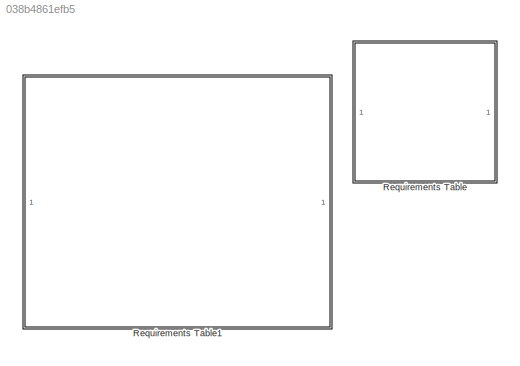
MODEL slx_038b4861efb5
KIND model
CONFIG AbsTol = auto
CONFIG EnableMultiTasking = on
CONFIG FixedStep = 1e-3
CONFIG MaxStep = auto
CONFIG MinStep = auto
CONFIG RelTol = 1e-3
CONFIG SampleTimeConstraint = Unconstrained
CONFIG SolverName = FixedStepAuto
CONFIG StartTime = 0.0
CONFIG StopTime = 10.0
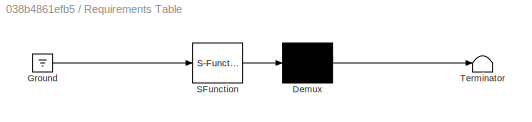
BLOCK [SubSystem] Requirements Table
  ErrorFcn = Stateflow.Translate.translate
  PermitHierarchicalResolution = ExplicitOnly
  SFBlockType = Requirements Table
  TreatAsAtomicUnit = on
BLOCK [Demux] Requirements Table/ Demux 
  Outputs = 1
BLOCK [Ground] Requirements Table/ Ground 
BLOCK [S-Function] Requirements Table/ SFunction 
  EnableBusSupport = off
  FunctionName = sf_sfun
  PortCounts = [1 1]
  SFcnIsStateOwnerBlock = off
  SFunctionDeploymentMode = off
  Tag = Stateflow S-Function 3
BLOCK [Terminator] Requirements Table/ Terminator 
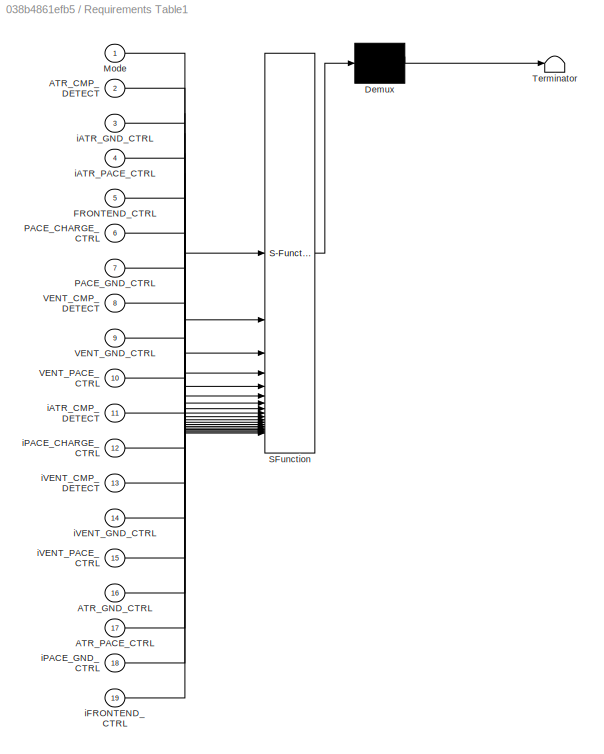
BLOCK [SubSystem] Requirements Table1
  ErrorFcn = Stateflow.Translate.translate
  PermitHierarchicalResolution = ExplicitOnly
  SFBlockType = Requirements Table
  TreatAsAtomicUnit = on
BLOCK [Demux] Requirements Table1/ Demux 
  Outputs = 1
BLOCK [S-Function] Requirements Table1/ SFunction 
  EnableBusSupport = on
  FunctionName = sf_sfun
  PortCounts = [19 1]
  SFcnIsStateOwnerBlock = off
  SFunctionDeploymentMode = off
  Tag = Stateflow S-Function 1
BLOCK [Terminator] Requirements Table1/ Terminator 
BLOCK [Inport] Requirements Table1/ATR_CMP_DETECT
  Port = 2
BLOCK [Inport] Requirements Table1/ATR_GND_CTRL
  Port = 16
BLOCK [Inport] Requirements Table1/ATR_PACE_CTRL
  Port = 17
BLOCK [Inport] Requirements Table1/FRONTEND_CTRL
  Port = 5
BLOCK [Inport] Requirements Table1/Mode
BLOCK [Inport] Requirements Table1/PACE_CHARGE_CTRL
  Port = 6
BLOCK [Inport] Requirements Table1/PACE_GND_CTRL
  Port = 7
BLOCK [Inport] Requirements Table1/VENT_CMP_DETECT
  Port = 8
BLOCK [Inport] Requirements Table1/VENT_GND_CTRL
  Port = 9
BLOCK [Inport] Requirements Table1/VENT_PACE_CTRL
  Port = 10
BLOCK [Inport] Requirements Table1/iATR_CMP_DETECT
  Port = 11
BLOCK [Inport] Requirements Table1/iATR_GND_CTRL
  Port = 3
BLOCK [Inport] Requirements Table1/iATR_PACE_CTRL
  Port = 4
BLOCK [Inport] Requirements Table1/iFRONTEND_CTRL
  Port = 19
BLOCK [Inport] Requirements Table1/iPACE_CHARGE_CTRL
  Port = 12
BLOCK [Inport] Requirements Table1/iPACE_GND_CTRL
  Port = 18
BLOCK [Inport] Requirements Table1/iVENT_CMP_DETECT
  Port = 13
BLOCK [Inport] Requirements Table1/iVENT_GND_CTRL
  Port = 14
BLOCK [Inport] Requirements Table1/iVENT_PACE_CTRL
  Port = 15
CHART Requirements Table1 states=0 transitions=93
CHART Requirements Table states=0 transitions=93
CHART  states=0 transitions=0
CHART  states=0 transitions=0
